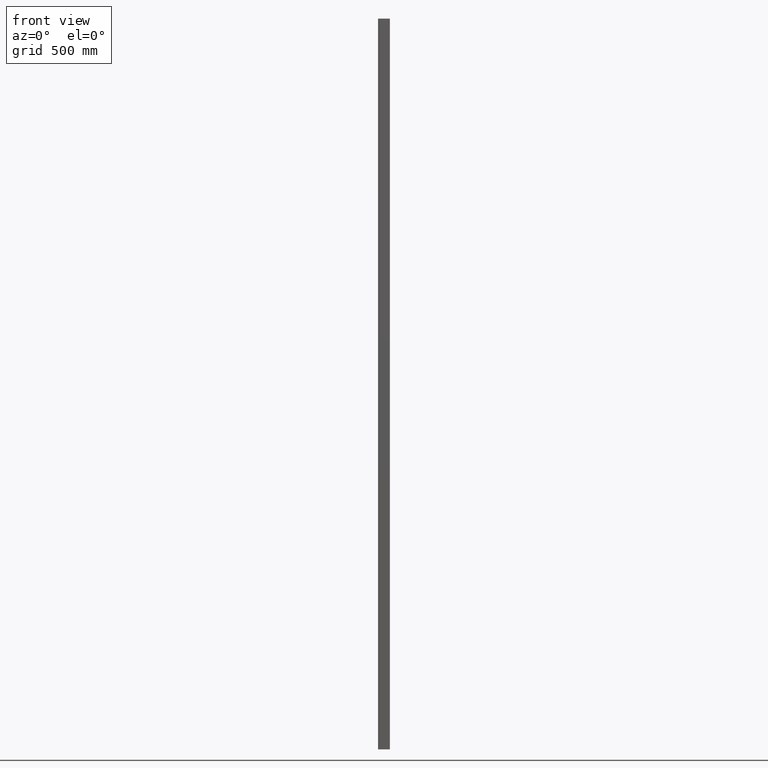
[diagram: clean part render]
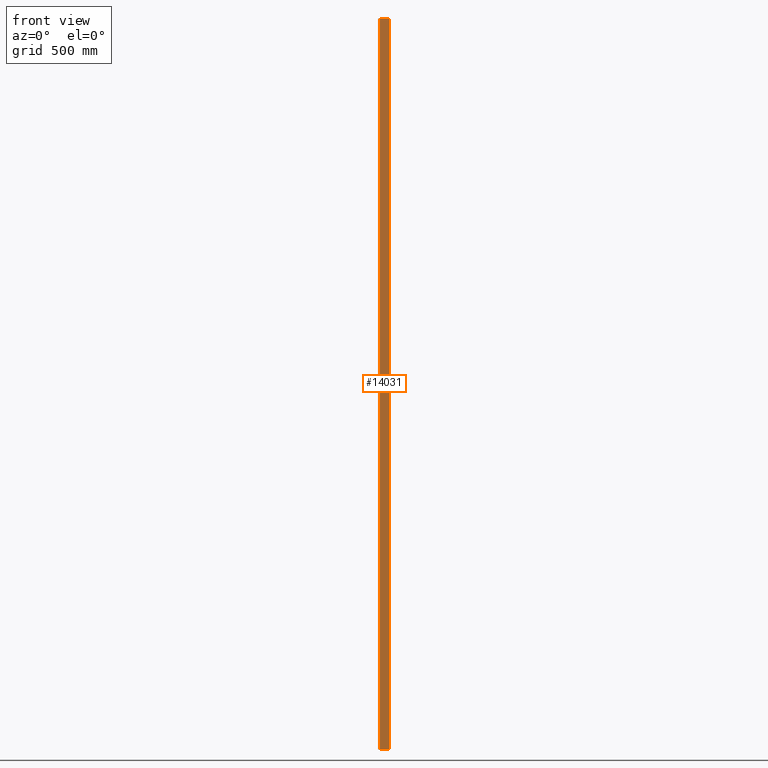
[diagram: same view with one face highlighted and labeled with its STEP entity id]
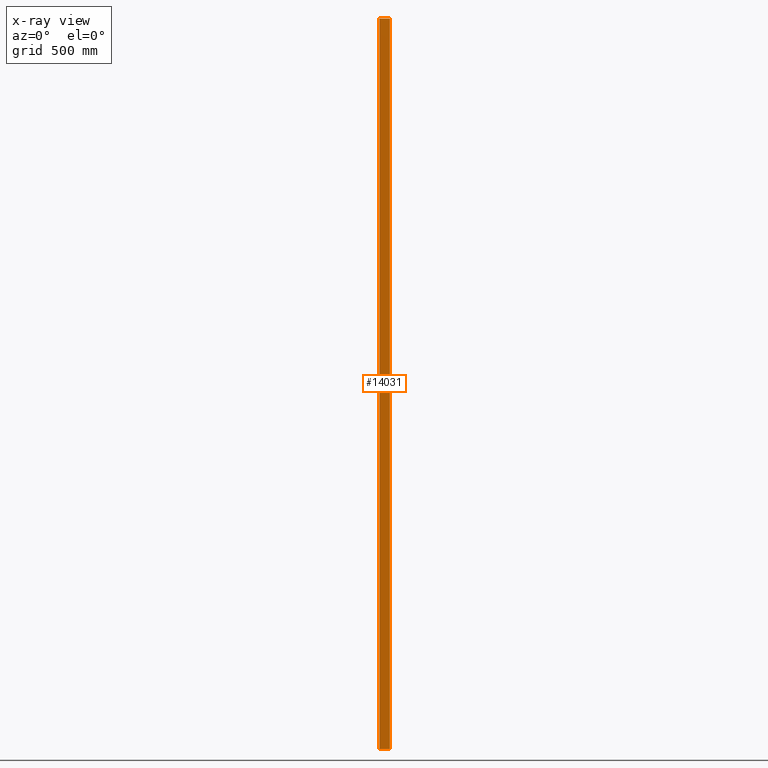
[diagram: x-ray of the same camera — body ghosted, the highlighted face saturated]
A machine part, front view. The second image highlights one B-rep face of the part: STEP entity #14031.
The next image is the same camera in x-ray: the body ghosted, the highlighted face saturated — about 0% of this face is hidden behind the body in this view.
In plain terms, the highlighted planar face has unit normal (-0, 1, 0).
Its self-contained STEP definition (entity closure, byte-faithful):
#376 = VECTOR ( 'NONE', #9891, 1000.000000000000000 ) ;
#842 = CARTESIAN_POINT ( 'NONE',  ( 4.885781668966657800, 0.0000000000000000000, 1500.000000000000000 ) ) ;
#982 = DIRECTION ( 'NONE',  ( -2.671800970530447900E-016, 1.000000000000000000, 0.0000000000000000000 ) ) ;
#1181 = CARTESIAN_POINT ( 'NONE',  ( 4.885781668966657800, 0.0000000000000000000, 1500.000000000000000 ) ) ;
#1292 = VECTOR ( 'NONE', #9346, 1000.000000000000000 ) ;
#1322 = EDGE_CURVE ( 'NONE', #4201, #7852, #14834, .T. ) ;
#1422 = CARTESIAN_POINT ( 'NONE',  ( 47.89999999999999900, 1.149254302834634500E-014, 1500.000000000000000 ) ) ;
#2684 = CARTESIAN_POINT ( 'NONE',  ( 4.885781668966657800, 0.0000000000000000000, -1500.000000000000000 ) ) ;
#2924 = AXIS2_PLACEMENT_3D ( 'NONE', #1181, #982, #12914 ) ;
#2986 = CARTESIAN_POINT ( 'NONE',  ( 47.89999999999999900, 1.149254302834634500E-014, -1500.000000000000000 ) ) ;
#3155 = CARTESIAN_POINT ( 'NONE',  ( 4.885781668966657800, 0.0000000000000000000, -1500.000000000000000 ) ) ;
#4113 = CARTESIAN_POINT ( 'NONE',  ( 4.885781668966657800, 0.0000000000000000000, 1500.000000000000000 ) ) ;
#4201 = VERTEX_POINT ( 'NONE', #4113 ) ;
#4706 = CARTESIAN_POINT ( 'NONE',  ( 4.885781668966657800, 0.0000000000000000000, 1500.000000000000000 ) ) ;
#5277 = VERTEX_POINT ( 'NONE', #2986 ) ;
#5731 = EDGE_CURVE ( 'NONE', #7852, #5277, #10373, .T. ) ;
#5879 = FACE_OUTER_BOUND ( 'NONE', #6958, .T. ) ;
#6395 = VERTEX_POINT ( 'NONE', #3155 ) ;
#6469 = ORIENTED_EDGE ( 'NONE', *, *, #5731, .F. ) ;
#6931 = LINE ( 'NONE', #2684, #376 ) ;
#6958 = EDGE_LOOP ( 'NONE', ( #13269, #6469, #11959, #14692 ) ) ;
#7217 = VECTOR ( 'NONE', #8612, 1000.000000000000000 ) ;
#7419 = CARTESIAN_POINT ( 'NONE',  ( 47.89999999999999900, 1.149254302834634500E-014, 1500.000000000000000 ) ) ;
#7852 = VERTEX_POINT ( 'NONE', #1422 ) ;
#8612 = DIRECTION ( 'NONE',  ( -0.0000000000000000000, -0.0000000000000000000, -1.000000000000000000 ) ) ;
#9262 = PLANE ( 'NONE',  #2924 ) ;
#9346 = DIRECTION ( 'NONE',  ( -0.0000000000000000000, -0.0000000000000000000, -1.000000000000000000 ) ) ;
#9776 = EDGE_CURVE ( 'NONE', #4201, #6395, #14441, .T. ) ;
#9891 = DIRECTION ( 'NONE',  ( 1.000000000000000000, 2.671800970530447900E-016, 0.0000000000000000000 ) ) ;
#10368 = DIRECTION ( 'NONE',  ( 1.000000000000000000, 2.671800970530447900E-016, 0.0000000000000000000 ) ) ;
#10373 = LINE ( 'NONE', #7419, #7217 ) ;
#11959 = ORIENTED_EDGE ( 'NONE', *, *, #1322, .F. ) ;
#12185 = VECTOR ( 'NONE', #10368, 1000.000000000000000 ) ;
#12914 = DIRECTION ( 'NONE',  ( -1.000000000000000000, -2.671800970530447900E-016, 0.0000000000000000000 ) ) ;
#13269 = ORIENTED_EDGE ( 'NONE', *, *, #14201, .T. ) ;
#14031 = ADVANCED_FACE ( 'NONE', ( #5879 ), #9262, .F. ) ;
#14201 = EDGE_CURVE ( 'NONE', #6395, #5277, #6931, .T. ) ;
#14441 = LINE ( 'NONE', #4706, #1292 ) ;
#14692 = ORIENTED_EDGE ( 'NONE', *, *, #9776, .T. ) ;
#14834 = LINE ( 'NONE', #842, #12185 ) ;